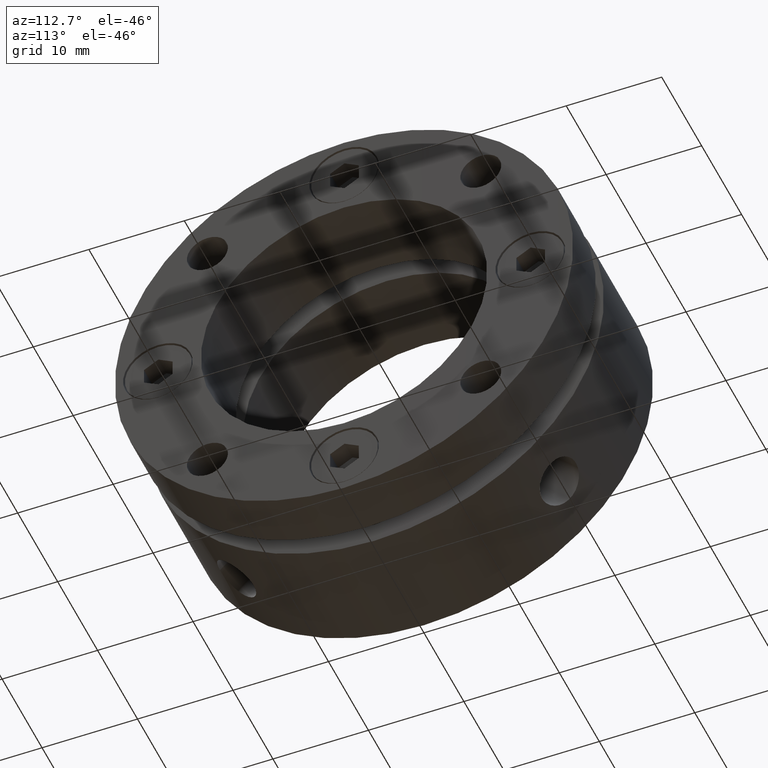
[diagram: clean part render]
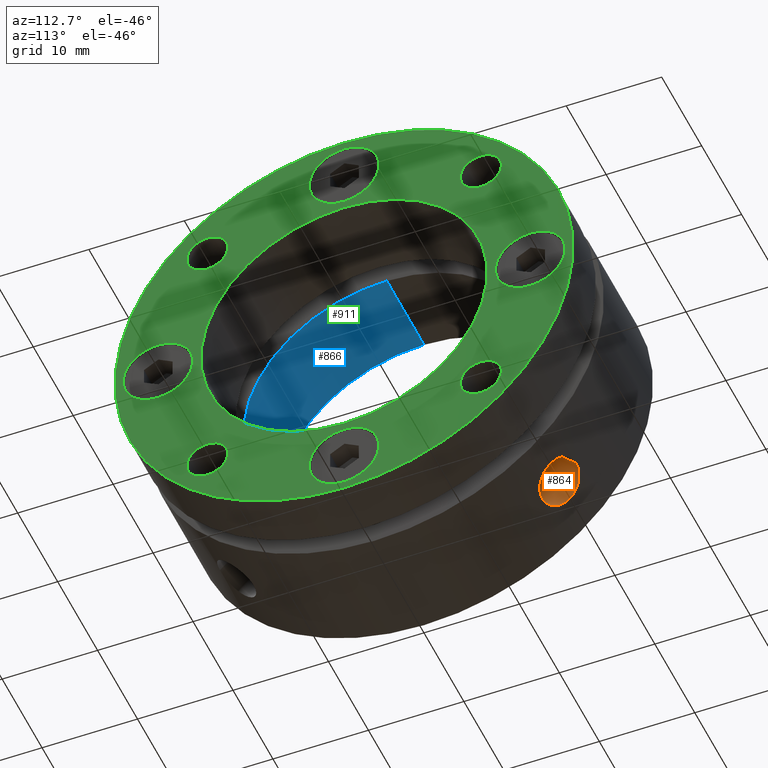
[diagram: same view with three faces highlighted in distinct colors, each labeled with its STEP entity id]
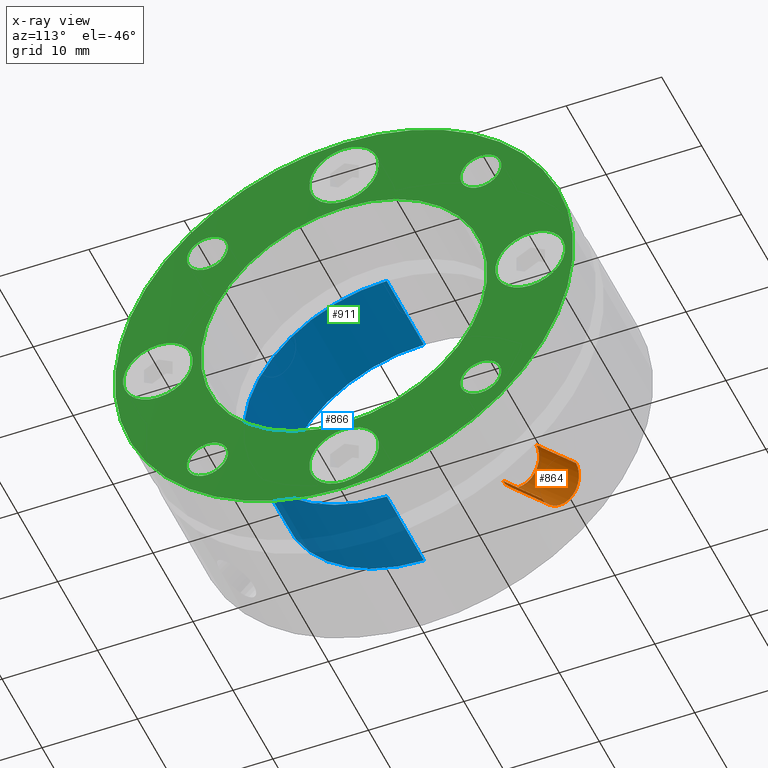
[diagram: x-ray of the same camera — body ghosted, the three highlighted faces saturated]
A machine part, auxiliary view with three faces highlighted in distinct colors.
The next image is the same camera in x-ray (body ghosted, the three faces saturated) — at least one of them is partly hidden behind the body in this view.
Their STEP definitions:

[orange] entity #864 — the highlighted cylindrical surface (edge-blend (fillet) strip) has radius 2.5 mm, axis along (0, 0.7071, -0.7071).
#273 = VERTEX_POINT ( 'NONE', #1110 ) ;
#342 = VERTEX_POINT ( 'NONE', #1218 ) ;
#357 = VERTEX_POINT ( 'NONE', #1233 ) ;
#366 = VERTEX_POINT ( 'NONE', #1242 ) ;
#637 = FACE_OUTER_BOUND ( 'NONE', #1670, .T. ) ;
#645 = CYLINDRICAL_SURFACE ( 'NONE', #1642, 2.500000000000000900 ) ;
#864 = ADVANCED_FACE ( 'NONE', ( #637 ), #645, .F. ) ;
#943 = ORIENTED_EDGE ( 'NONE', *, *, #2958, .F. ) ;
#986 = ORIENTED_EDGE ( 'NONE', *, *, #2942, .F. ) ;
#1063 = ORIENTED_EDGE ( 'NONE', *, *, #2944, .F. ) ;
#1077 = ORIENTED_EDGE ( 'NONE', *, *, #2943, .T. ) ;
#1110 = CARTESIAN_POINT ( 'NONE',  ( 6.499999999999992900, 18.64600738258462100, -15.11047347665188100 ) ) ;
#1218 = CARTESIAN_POINT ( 'NONE',  ( 6.499999999999992900, 15.11047347665188100, -18.64600738258462100 ) ) ;
#1233 = CARTESIAN_POINT ( 'NONE',  ( 6.499999999999992900, 14.49568901193031700, -10.96015511078540200 ) ) ;
#1242 = CARTESIAN_POINT ( 'NONE',  ( 6.499999999999992900, 10.96015511078539400, -14.49568901193032000 ) ) ;
#1418 = DIRECTION ( 'NONE',  ( 0.0000000000000000000, 0.7071067811865482400, 0.7071067811865469100 ) ) ;
#1420 = DIRECTION ( 'NONE',  ( 0.0000000000000000000, 0.7071067811865470200, -0.7071067811865480200 ) ) ;
#1422 = CARTESIAN_POINT ( 'NONE',  ( 6.499999999999992900, 14.84924240491750200, -14.84924240491750100 ) ) ;
#1642 = AXIS2_PLACEMENT_3D ( 'NONE', #1422, #1420, #1418 ) ;
#1670 = EDGE_LOOP ( 'NONE', ( #986, #1077, #943, #1063 ) ) ;
#1974 = DIRECTION ( 'NONE',  ( 0.0000000000000000000, 0.7071067811865470200, -0.7071067811865480200 ) ) ;
#1975 = CARTESIAN_POINT ( 'NONE',  ( 6.499999999999992900, 16.61700935788387300, -13.08147545195113400 ) ) ;
#1976 = CARTESIAN_POINT ( 'NONE',  ( 6.499999999999992900, 13.08147545195113400, -16.61700935788386600 ) ) ;
#1977 = CARTESIAN_POINT ( 'NONE',  ( 6.499999999999992900, 12.72792206135786100, -12.72792206135785500 ) ) ;
#1978 = DIRECTION ( 'NONE',  ( 0.0000000000000000000, 0.7071067811865470200, -0.7071067811865480200 ) ) ;
#1979 = DIRECTION ( 'NONE',  ( 0.0000000000000000000, 0.7071067811865477900, 0.7071067811865471300 ) ) ;
#1980 = DIRECTION ( 'NONE',  ( 0.0000000000000000000, 0.7071067811865470200, -0.7071067811865480200 ) ) ;
#2004 = CARTESIAN_POINT ( 'NONE',  ( 6.336851229127781900, 18.64600738258462400, -15.11047347665188000 ) ) ;
#2044 = CARTESIAN_POINT ( 'NONE',  ( 6.499999999999992900, 18.64600738258462100, -15.11047347665188100 ) ) ;
#2047 = CARTESIAN_POINT ( 'NONE',  ( 6.171126318216708200, 18.63567463870816700, -15.12324914815100000 ) ) ;
#2048 = CARTESIAN_POINT ( 'NONE',  ( 5.850495281030658700, 18.59508197673410700, -15.17313284445170400 ) ) ;
#2049 = CARTESIAN_POINT ( 'NONE',  ( 5.694643620607737800, 18.56504055036660000, -15.20997163798968700 ) ) ;
#2050 = CARTESIAN_POINT ( 'NONE',  ( 5.391912817331038900, 18.48494439098286400, -15.30721394400294600 ) ) ;
#2051 = CARTESIAN_POINT ( 'NONE',  ( 5.245723716158093600, 18.43476503243007200, -15.36774834010177500 ) ) ;
#2052 = CARTESIAN_POINT ( 'NONE',  ( 4.975052603350497400, 18.31791219003896000, -15.50684828853463200 ) ) ;
#2053 = CARTESIAN_POINT ( 'NONE',  ( 4.848831003259738800, 18.25082929444969800, -15.58592055930879100 ) ) ;
#2054 = CARTESIAN_POINT ( 'NONE',  ( 4.615481588381011400, 18.09799925712380300, -15.76312508690372700 ) ) ;
#2055 = CARTESIAN_POINT ( 'NONE',  ( 4.512181590778398600, 18.01475831166785800, -15.85833714840190100 ) ) ;
#2056 = CARTESIAN_POINT ( 'NONE',  ( 4.331233056814772600, 17.83447995763962300, -16.06081251931982100 ) ) ;
#2057 = CARTESIAN_POINT ( 'NONE',  ( 4.252956242175906200, 17.73627231745221500, -16.16934113722194900 ) ) ;
#2058 = CARTESIAN_POINT ( 'NONE',  ( 4.127572985538736600, 17.53074584584160800, -16.39194615105805800 ) ) ;
#2059 = CARTESIAN_POINT ( 'NONE',  ( 4.080298989813622200, 17.42394023411386800, -16.50551426219283600 ) ) ;
#2060 = CARTESIAN_POINT ( 'NONE',  ( 4.016347628802773100, 17.20191697649172700, -16.73677826450804700 ) ) ;
#2061 = CARTESIAN_POINT ( 'NONE',  ( 3.999881642988480500, 17.08614379081348400, -16.85499914177078300 ) ) ;
#2062 = CARTESIAN_POINT ( 'NONE',  ( 4.000119653650899400, 16.85243539851974500, -17.08867247179155400 ) ) ;
#2063 = CARTESIAN_POINT ( 'NONE',  ( 4.016458775783743100, 16.73634325594349500, -17.20233587364240100 ) ) ;
#2064 = CARTESIAN_POINT ( 'NONE',  ( 4.080242779394365200, 16.50575063501013800, -17.42371203461626200 ) ) ;
#2065 = CARTESIAN_POINT ( 'NONE',  ( 4.128472171680477300, 16.39001592350015800, -17.53254973814429000 ) ) ;
#2066 = CARTESIAN_POINT ( 'NONE',  ( 4.254175294214838300, 16.16751633235228200, -17.73793499639160500 ) ) ;
#2067 = CARTESIAN_POINT ( 'NONE',  ( 4.331055416282445900, 16.06098996857352600, -17.83432355439122200 ) ) ;
#2068 = CARTESIAN_POINT ( 'NONE',  ( 4.512639676122377700, 15.85784592372521300, -18.01519408923269700 ) ) ;
#2069 = CARTESIAN_POINT ( 'NONE',  ( 4.618228715833774700, 15.76090865211908100, -18.09991950117736100 ) ) ;
#2070 = CARTESIAN_POINT ( 'NONE',  ( 4.848827627745725600, 15.58605496080352300, -18.25070459594244100 ) ) ;
#2071 = CARTESIAN_POINT ( 'NONE',  ( 4.974663932832263500, 15.50698082356055200, -18.31780400588882400 ) ) ;
#2072 = CARTESIAN_POINT ( 'NONE',  ( 5.248004349991624000, 15.36664397756031900, -18.43568959185797200 ) ) ;
#2073 = CARTESIAN_POINT ( 'NONE',  ( 5.393356109963741000, 15.30672219856723100, -18.48535010690456600 ) ) ;
#2074 = CARTESIAN_POINT ( 'NONE',  ( 5.694165667820613000, 15.21015339021312400, -18.56489016625564400 ) ) ;
#2075 = CARTESIAN_POINT ( 'NONE',  ( 5.851852106563592700, 15.17279477268713000, -18.59535790799961000 ) ) ;
#2076 = CARTESIAN_POINT ( 'NONE',  ( 6.174582852707471800, 15.12284026676862000, -18.63600652517826400 ) ) ;
#2077 = CARTESIAN_POINT ( 'NONE',  ( 6.336850941300691700, 15.11047347665188100, -18.64600738258462100 ) ) ;
#2078 = CARTESIAN_POINT ( 'NONE',  ( 6.499999999999992900, 15.11047347665188100, -18.64600738258462100 ) ) ;
#2636 = LINE ( 'NONE', #1976, #2643 ) ;
#2639 = CIRCLE ( 'NONE', #3368, 2.500000000000000000 ) ;
#2641 = LINE ( 'NONE', #1975, #2645 ) ;
#2643 = VECTOR ( 'NONE', #1974, 1000.000000000000000 ) ;
#2645 = VECTOR ( 'NONE', #1980, 1000.000000000000000 ) ;
#2942 = EDGE_CURVE ( 'NONE', #366, #357, #2639, .T. ) ;
#2943 = EDGE_CURVE ( 'NONE', #366, #342, #2636, .T. ) ;
#2944 = EDGE_CURVE ( 'NONE', #357, #273, #2641, .T. ) ;
#2958 = EDGE_CURVE ( 'NONE', #273, #342, #3222, .T. ) ;
#3222 = B_SPLINE_CURVE_WITH_KNOTS ( 'NONE', 3,
 ( #2044, #2004, #2047, #2048, #2049, #2050, #2051, #2052, #2053, #2054, #2055, #2056, #2057, #2058, #2059, #2060, #2061, #2062, #2063, #2064, #2065, #2066, #2067, #2068, #2069, #2070, #2071, #2072, #2073, #2074, #2075, #2076, #2077, #2078 ),
 .UNSPECIFIED., .F., .F.,
 ( 4, 2, 2, 2, 2, 2, 2, 2, 2, 2, 2, 2, 2, 2, 2, 2, 4 ),
 ( 0.01173133681417122000, 0.01222006856008957100, 0.01270880030600792000, 0.01319753205192627000, 0.01368626379784462100, 0.01417499554376297100, 0.01466372728968132000, 0.01515245903559967100, 0.01564119078151802000, 0.01612992252743637000, 0.01661865427335472100, 0.01710738601927307100, 0.01759611776519141900, 0.01808484951110977300, 0.01857358125702812000, 0.01906231300294647000, 0.01955104474886482100 ),
 .UNSPECIFIED. ) ;
#3368 = AXIS2_PLACEMENT_3D ( 'NONE', #1977, #1978, #1979 ) ;

[blue] entity #866 — the highlighted cylindrical surface (partial cylindrical patch) has radius 15 mm, axis along (1, 0, 0).
#338 = VERTEX_POINT ( 'NONE', #1214 ) ;
#339 = VERTEX_POINT ( 'NONE', #1215 ) ;
#341 = VERTEX_POINT ( 'NONE', #1217 ) ;
#356 = VERTEX_POINT ( 'NONE', #1232 ) ;
#640 = FACE_OUTER_BOUND ( 'NONE', #1664, .T. ) ;
#649 = CYLINDRICAL_SURFACE ( 'NONE', #1640, 15.00000000000000000 ) ;
#866 = ADVANCED_FACE ( 'NONE', ( #640 ), #649, .F. ) ;
#954 = ORIENTED_EDGE ( 'NONE', *, *, #2949, .T. ) ;
#979 = ORIENTED_EDGE ( 'NONE', *, *, #2951, .F. ) ;
#1027 = ORIENTED_EDGE ( 'NONE', *, *, #2948, .F. ) ;
#1082 = ORIENTED_EDGE ( 'NONE', *, *, #2953, .F. ) ;
#1214 = CARTESIAN_POINT ( 'NONE',  ( 9.300000000000022000, 1.836970198721029600E-015, 15.00000000000000000 ) ) ;
#1215 = CARTESIAN_POINT ( 'NONE',  ( 9.300000000000022000, 0.0000000000000000000, -15.00000000000000000 ) ) ;
#1217 = CARTESIAN_POINT ( 'NONE',  ( -3.469446951953614200E-015, 1.836970198721029600E-015, 15.00000000000000000 ) ) ;
#1232 = CARTESIAN_POINT ( 'NONE',  ( -3.469446951953614200E-015, 0.0000000000000000000, -15.00000000000000000 ) ) ;
#1424 = DIRECTION ( 'NONE',  ( 0.0000000000000000000, 0.0000000000000000000, -1.000000000000000000 ) ) ;
#1426 = DIRECTION ( 'NONE',  ( 1.000000000000000000, 0.0000000000000000000, 0.0000000000000000000 ) ) ;
#1428 = CARTESIAN_POINT ( 'NONE',  ( 9.999999999999996400, 0.0000000000000000000, 0.0000000000000000000 ) ) ;
#1640 = AXIS2_PLACEMENT_3D ( 'NONE', #1428, #1426, #1424 ) ;
#1664 = EDGE_LOOP ( 'NONE', ( #1027, #954, #979, #1082 ) ) ;
#1988 = DIRECTION ( 'NONE',  ( 1.000000000000000000, 0.0000000000000000000, 0.0000000000000000000 ) ) ;
#1990 = CARTESIAN_POINT ( 'NONE',  ( 9.999999999999996400, 1.836970198721029600E-015, 15.00000000000000000 ) ) ;
#1991 = CARTESIAN_POINT ( 'NONE',  ( -3.469446951953614200E-015, 0.0000000000000000000, 0.0000000000000000000 ) ) ;
#1992 = DIRECTION ( 'NONE',  ( 1.000000000000000000, 0.0000000000000000000, 0.0000000000000000000 ) ) ;
#1993 = DIRECTION ( 'NONE',  ( 0.0000000000000000000, 0.0000000000000000000, -1.000000000000000000 ) ) ;
#1998 = CARTESIAN_POINT ( 'NONE',  ( 9.300000000000022000, 0.0000000000000000000, 0.0000000000000000000 ) ) ;
#1999 = DIRECTION ( 'NONE',  ( -1.000000000000000000, -0.0000000000000000000, -0.0000000000000000000 ) ) ;
#2000 = DIRECTION ( 'NONE',  ( 0.0000000000000000000, 0.0000000000000000000, -1.000000000000000000 ) ) ;
#2001 = CARTESIAN_POINT ( 'NONE',  ( 9.999999999999996400, 0.0000000000000000000, -15.00000000000000000 ) ) ;
#2002 = DIRECTION ( 'NONE',  ( 1.000000000000000000, 0.0000000000000000000, 0.0000000000000000000 ) ) ;
#2647 = CIRCLE ( 'NONE', #3370, 15.00000000000000000 ) ;
#2649 = LINE ( 'NONE', #1990, #2653 ) ;
#2653 = VECTOR ( 'NONE', #1988, 1000.000000000000000 ) ;
#2654 = CIRCLE ( 'NONE', #3371, 15.00000000000000000 ) ;
#2657 = LINE ( 'NONE', #2001, #2660 ) ;
#2660 = VECTOR ( 'NONE', #2002, 1000.000000000000000 ) ;
#2948 = EDGE_CURVE ( 'NONE', #341, #356, #2647, .T. ) ;
#2949 = EDGE_CURVE ( 'NONE', #341, #338, #2649, .T. ) ;
#2951 = EDGE_CURVE ( 'NONE', #339, #338, #2654, .T. ) ;
#2953 = EDGE_CURVE ( 'NONE', #356, #339, #2657, .T. ) ;
#3370 = AXIS2_PLACEMENT_3D ( 'NONE', #1991, #1992, #1993 ) ;
#3371 = AXIS2_PLACEMENT_3D ( 'NONE', #1998, #1999, #2000 ) ;

[green] entity #911 — the highlighted planar face has unit normal (1, 0, 0).
#23 = EDGE_LOOP ( 'NONE', ( #436, #435 ) ) ;
#33 = EDGE_LOOP ( 'NONE', ( #444, #443 ) ) ;
#254 = AXIS2_PLACEMENT_3D ( 'NONE', #1563, #1559, #1565 ) ;
#427 = ORIENTED_EDGE ( 'NONE', *, *, #799, .F. ) ;
#428 = ORIENTED_EDGE ( 'NONE', *, *, #2857, .F. ) ;
#429 = ORIENTED_EDGE ( 'NONE', *, *, #2844, .T. ) ;
#430 = ORIENTED_EDGE ( 'NONE', *, *, #2830, .T. ) ;
#431 = ORIENTED_EDGE ( 'NONE', *, *, #2845, .T. ) ;
#432 = ORIENTED_EDGE ( 'NONE', *, *, #843, .T. ) ;
#433 = ORIENTED_EDGE ( 'NONE', *, *, #2846, .T. ) ;
#434 = ORIENTED_EDGE ( 'NONE', *, *, #845, .T. ) ;
#435 = ORIENTED_EDGE ( 'NONE', *, *, #2847, .T. ) ;
#436 = ORIENTED_EDGE ( 'NONE', *, *, #837, .T. ) ;
#437 = ORIENTED_EDGE ( 'NONE', *, *, #2849, .T. ) ;
#438 = ORIENTED_EDGE ( 'NONE', *, *, #832, .T. ) ;
#439 = ORIENTED_EDGE ( 'NONE', *, *, #2851, .T. ) ;
#440 = ORIENTED_EDGE ( 'NONE', *, *, #801, .T. ) ;
#441 = ORIENTED_EDGE ( 'NONE', *, *, #2853, .T. ) ;
#442 = ORIENTED_EDGE ( 'NONE', *, *, #804, .T. ) ;
#443 = ORIENTED_EDGE ( 'NONE', *, *, #2855, .T. ) ;
#444 = ORIENTED_EDGE ( 'NONE', *, *, #811, .T. ) ;
#445 = ORIENTED_EDGE ( 'NONE', *, *, #2856, .T. ) ;
#446 = ORIENTED_EDGE ( 'NONE', *, *, #3493, .T. ) ;
#476 = AXIS2_PLACEMENT_3D ( 'NONE', #1336, #1337, #1338 ) ;
#477 = AXIS2_PLACEMENT_3D ( 'NONE', #1258, #1259, #1260 ) ;
#481 = AXIS2_PLACEMENT_3D ( 'NONE', #1252, #1253, #1254 ) ;
#484 = AXIS2_PLACEMENT_3D ( 'NONE', #1264, #1265, #1266 ) ;
#490 = AXIS2_PLACEMENT_3D ( 'NONE', #1282, #1283, #1284 ) ;
#498 = AXIS2_PLACEMENT_3D ( 'NONE', #1350, #1351, #1352 ) ;
#501 = AXIS2_PLACEMENT_3D ( 'NONE', #1368, #1369, #1370 ) ;
#502 = AXIS2_PLACEMENT_3D ( 'NONE', #1360, #1361, #1362 ) ;
#542 = CIRCLE ( 'NONE', #481, 24.00000000000000400 ) ;
#551 = CIRCLE ( 'NONE', #477, 3.650000000000000400 ) ;
#553 = CIRCLE ( 'NONE', #484, 3.649999999999999900 ) ;
#563 = CIRCLE ( 'NONE', #490, 3.650000000000000400 ) ;
#595 = CIRCLE ( 'NONE', #476, 3.649999999999999900 ) ;
#603 = CIRCLE ( 'NONE', #498, 2.149999999999999000 ) ;
#612 = CIRCLE ( 'NONE', #502, 2.149999999999999000 ) ;
#616 = CIRCLE ( 'NONE', #501, 2.149999999999999000 ) ;
#730 = FACE_BOUND ( 'NONE', #1662, .T. ) ;
#732 = FACE_BOUND ( 'NONE', #3529, .T. ) ;
#734 = FACE_BOUND ( 'NONE', #3530, .T. ) ;
#736 = FACE_BOUND ( 'NONE', #3528, .T. ) ;
#738 = FACE_BOUND ( 'NONE', #33, .T. ) ;
#739 = FACE_BOUND ( 'NONE', #23, .T. ) ;
#740 = FACE_BOUND ( 'NONE', #3531, .T. ) ;
#741 = FACE_BOUND ( 'NONE', #3532, .T. ) ;
#742 = FACE_BOUND ( 'NONE', #3533, .T. ) ;
#743 = FACE_OUTER_BOUND ( 'NONE', #3534, .T. ) ;
#799 = EDGE_CURVE ( 'NONE', #1003, #1067, #542, .T. ) ;
#801 = EDGE_CURVE ( 'NONE', #1014, #1039, #551, .T. ) ;
#804 = EDGE_CURVE ( 'NONE', #1083, #960, #553, .T. ) ;
#811 = EDGE_CURVE ( 'NONE', #1056, #1058, #563, .T. ) ;
#832 = EDGE_CURVE ( 'NONE', #1064, #1020, #595, .T. ) ;
#837 = EDGE_CURVE ( 'NONE', #953, #955, #603, .T. ) ;
#843 = EDGE_CURVE ( 'NONE', #1012, #999, #612, .T. ) ;
#845 = EDGE_CURVE ( 'NONE', #1035, #1037, #616, .T. ) ;
#911 = ADVANCED_FACE ( 'NONE', ( #730, #738, #734, #732, #736, #739, #740, #741, #742, #743 ), #1561, .T. ) ;
#953 = VERTEX_POINT ( 'NONE', #1690 ) ;
#955 = VERTEX_POINT ( 'NONE', #1685 ) ;
#960 = VERTEX_POINT ( 'NONE', #1694 ) ;
#999 = VERTEX_POINT ( 'NONE', #1709 ) ;
#1003 = VERTEX_POINT ( 'NONE', #1711 ) ;
#1012 = VERTEX_POINT ( 'NONE', #1706 ) ;
#1014 = VERTEX_POINT ( 'NONE', #1715 ) ;
#1020 = VERTEX_POINT ( 'NONE', #1718 ) ;
#1035 = VERTEX_POINT ( 'NONE', #1713 ) ;
#1036 = VERTEX_POINT ( 'NONE', #1720 ) ;
#1037 = VERTEX_POINT ( 'NONE', #1721 ) ;
#1039 = VERTEX_POINT ( 'NONE', #1719 ) ;
#1050 = VERTEX_POINT ( 'NONE', #1725 ) ;
#1053 = VERTEX_POINT ( 'NONE', #1729 ) ;
#1056 = VERTEX_POINT ( 'NONE', #1728 ) ;
#1058 = VERTEX_POINT ( 'NONE', #1724 ) ;
#1064 = VERTEX_POINT ( 'NONE', #1733 ) ;
#1067 = VERTEX_POINT ( 'NONE', #1730 ) ;
#1083 = VERTEX_POINT ( 'NONE', #1737 ) ;
#1084 = VERTEX_POINT ( 'NONE', #1735 ) ;
#1252 = CARTESIAN_POINT ( 'NONE',  ( 19.99999999999999300, 0.0000000000000000000, 0.0000000000000000000 ) ) ;
#1253 = DIRECTION ( 'NONE',  ( -1.000000000000000000, -0.0000000000000000000, -0.0000000000000000000 ) ) ;
#1254 = DIRECTION ( 'NONE',  ( 0.0000000000000000000, 0.0000000000000000000, -1.000000000000000000 ) ) ;
#1258 = CARTESIAN_POINT ( 'NONE',  ( 19.99999999999999600, -2.388060999999999800E-015, -19.50000000000001400 ) ) ;
#1259 = DIRECTION ( 'NONE',  ( -1.000000000000000000, -0.0000000000000000000, -0.0000000000000000000 ) ) ;
#1260 = DIRECTION ( 'NONE',  ( 0.0000000000000000000, 0.0000000000000000000, -1.000000000000000000 ) ) ;
#1264 = CARTESIAN_POINT ( 'NONE',  ( 19.99999999999999600, -19.50000000000001400, 1.194031000000000000E-015 ) ) ;
#1265 = DIRECTION ( 'NONE',  ( -1.000000000000000000, -0.0000000000000000000, -0.0000000000000000000 ) ) ;
#1266 = DIRECTION ( 'NONE',  ( 0.0000000000000000000, 0.0000000000000000000, -1.000000000000000000 ) ) ;
#1282 = CARTESIAN_POINT ( 'NONE',  ( 19.99999999999999600, 0.0000000000000000000, 19.50000000000001400 ) ) ;
#1283 = DIRECTION ( 'NONE',  ( -1.000000000000000000, -0.0000000000000000000, -0.0000000000000000000 ) ) ;
#1284 = DIRECTION ( 'NONE',  ( 0.0000000000000000000, 0.0000000000000000000, -1.000000000000000000 ) ) ;
#1336 = CARTESIAN_POINT ( 'NONE',  ( 19.99999999999999600, 19.50000000000001400, -3.582092000000000200E-015 ) ) ;
#1337 = DIRECTION ( 'NONE',  ( -1.000000000000000000, -0.0000000000000000000, -0.0000000000000000000 ) ) ;
#1338 = DIRECTION ( 'NONE',  ( 0.0000000000000000000, 0.0000000000000000000, -1.000000000000000000 ) ) ;
#1350 = CARTESIAN_POINT ( 'NONE',  ( 19.99999999999999600, -14.31891231902758900, 14.31891231902758900 ) ) ;
#1351 = DIRECTION ( 'NONE',  ( -1.000000000000000000, -0.0000000000000000000, -0.0000000000000000000 ) ) ;
#1352 = DIRECTION ( 'NONE',  ( 0.0000000000000000000, 0.0000000000000000000, -1.000000000000000000 ) ) ;
#1360 = CARTESIAN_POINT ( 'NONE',  ( 19.99999999999999600, 14.31891231902758900, -14.31891231902758900 ) ) ;
#1361 = DIRECTION ( 'NONE',  ( -1.000000000000000000, -0.0000000000000000000, -0.0000000000000000000 ) ) ;
#1362 = DIRECTION ( 'NONE',  ( 0.0000000000000000000, 0.0000000000000000000, -1.000000000000000000 ) ) ;
#1368 = CARTESIAN_POINT ( 'NONE',  ( 19.99999999999999600, -14.31891231902758900, -14.31891231902758900 ) ) ;
#1369 = DIRECTION ( 'NONE',  ( -1.000000000000000000, -0.0000000000000000000, -0.0000000000000000000 ) ) ;
#1370 = DIRECTION ( 'NONE',  ( 0.0000000000000000000, 0.0000000000000000000, -1.000000000000000000 ) ) ;
#1559 = DIRECTION ( 'NONE',  ( 1.000000000000000000, -0.0000000000000000000, 0.0000000000000000000 ) ) ;
#1561 = PLANE ( 'NONE',  #254 ) ;
#1563 = CARTESIAN_POINT ( 'NONE',  ( 19.99999999999999600, 19.50000000000000000, 0.0000000000000000000 ) ) ;
#1565 = DIRECTION ( 'NONE',  ( 0.0000000000000000000, 0.0000000000000000000, -1.000000000000000000 ) ) ;
#1662 = EDGE_LOOP ( 'NONE', ( #446, #445 ) ) ;
#1685 = CARTESIAN_POINT ( 'NONE',  ( 19.99999999999999600, -14.31891231902758900, 16.46891231902758800 ) ) ;
#1690 = CARTESIAN_POINT ( 'NONE',  ( 19.99999999999999600, -14.31891231902758900, 12.16891231902758900 ) ) ;
#1694 = CARTESIAN_POINT ( 'NONE',  ( 19.99999999999999600, -19.50000000000001400, 3.650000000000001200 ) ) ;
#1706 = CARTESIAN_POINT ( 'NONE',  ( 19.99999999999999600, 14.31891231902758900, -16.46891231902758800 ) ) ;
#1709 = CARTESIAN_POINT ( 'NONE',  ( 19.99999999999999600, 14.31891231902758900, -12.16891231902758900 ) ) ;
#1711 = CARTESIAN_POINT ( 'NONE',  ( 19.99999999999999300, 2.939152317953648300E-015, 24.00000000000000400 ) ) ;
#1713 = CARTESIAN_POINT ( 'NONE',  ( 19.99999999999999600, -14.31891231902758900, -16.46891231902758800 ) ) ;
#1715 = CARTESIAN_POINT ( 'NONE',  ( 19.99999999999999600, -2.388060999999999800E-015, -23.15000000000001300 ) ) ;
#1718 = CARTESIAN_POINT ( 'NONE',  ( 19.99999999999999600, 19.50000000000001400, 3.649999999999996400 ) ) ;
#1719 = CARTESIAN_POINT ( 'NONE',  ( 19.99999999999999600, -1.941064918311216000E-015, -15.85000000000001400 ) ) ;
#1720 = CARTESIAN_POINT ( 'NONE',  ( 19.99999999999999600, 0.0000000000000000000, -15.00000000000000000 ) ) ;
#1721 = CARTESIAN_POINT ( 'NONE',  ( 19.99999999999999600, -14.31891231902758900, -12.16891231902758900 ) ) ;
#1724 = CARTESIAN_POINT ( 'NONE',  ( 19.99999999999999600, 4.469960816887838400E-016, 23.15000000000001300 ) ) ;
#1725 = CARTESIAN_POINT ( 'NONE',  ( 19.99999999999999600, 14.31891231902759100, 12.16891231902758500 ) ) ;
#1728 = CARTESIAN_POINT ( 'NONE',  ( 19.99999999999999600, 0.0000000000000000000, 15.85000000000001400 ) ) ;
#1729 = CARTESIAN_POINT ( 'NONE',  ( 19.99999999999999600, 14.31891231902759100, 16.46891231902758400 ) ) ;
#1730 = CARTESIAN_POINT ( 'NONE',  ( 19.99999999999999300, 0.0000000000000000000, -24.00000000000000400 ) ) ;
#1733 = CARTESIAN_POINT ( 'NONE',  ( 19.99999999999999600, 19.50000000000001400, -3.650000000000003500 ) ) ;
#1735 = CARTESIAN_POINT ( 'NONE',  ( 19.99999999999999600, 1.836970198721029600E-015, 15.00000000000000000 ) ) ;
#1737 = CARTESIAN_POINT ( 'NONE',  ( 19.99999999999999600, -19.50000000000001400, -3.649999999999998600 ) ) ;
#1745 = CARTESIAN_POINT ( 'NONE',  ( 19.99999999999999600, 14.31891231902759100, 14.31891231902758600 ) ) ;
#1746 = DIRECTION ( 'NONE',  ( -1.000000000000000000, -0.0000000000000000000, -0.0000000000000000000 ) ) ;
#1747 = DIRECTION ( 'NONE',  ( 0.0000000000000000000, 0.0000000000000000000, -1.000000000000000000 ) ) ;
#1779 = CARTESIAN_POINT ( 'NONE',  ( 19.99999999999999600, 14.31891231902759100, 14.31891231902758600 ) ) ;
#1780 = DIRECTION ( 'NONE',  ( -1.000000000000000000, -0.0000000000000000000, -0.0000000000000000000 ) ) ;
#1781 = DIRECTION ( 'NONE',  ( 0.0000000000000000000, 0.0000000000000000000, -1.000000000000000000 ) ) ;
#1782 = CARTESIAN_POINT ( 'NONE',  ( 19.99999999999999600, 14.31891231902758900, -14.31891231902758900 ) ) ;
#1783 = DIRECTION ( 'NONE',  ( -1.000000000000000000, -0.0000000000000000000, -0.0000000000000000000 ) ) ;
#1784 = DIRECTION ( 'NONE',  ( 0.0000000000000000000, 0.0000000000000000000, -1.000000000000000000 ) ) ;
#1785 = CARTESIAN_POINT ( 'NONE',  ( 19.99999999999999600, -14.31891231902758900, -14.31891231902758900 ) ) ;
#1786 = DIRECTION ( 'NONE',  ( -1.000000000000000000, -0.0000000000000000000, -0.0000000000000000000 ) ) ;
#1787 = DIRECTION ( 'NONE',  ( 0.0000000000000000000, 0.0000000000000000000, -1.000000000000000000 ) ) ;
#1788 = CARTESIAN_POINT ( 'NONE',  ( 19.99999999999999600, -14.31891231902758900, 14.31891231902758900 ) ) ;
#1789 = DIRECTION ( 'NONE',  ( -1.000000000000000000, -0.0000000000000000000, -0.0000000000000000000 ) ) ;
#1790 = DIRECTION ( 'NONE',  ( 0.0000000000000000000, 0.0000000000000000000, -1.000000000000000000 ) ) ;
#1794 = CARTESIAN_POINT ( 'NONE',  ( 19.99999999999999600, 19.50000000000001400, -3.582092000000000200E-015 ) ) ;
#1795 = DIRECTION ( 'NONE',  ( -1.000000000000000000, -0.0000000000000000000, -0.0000000000000000000 ) ) ;
#1796 = DIRECTION ( 'NONE',  ( 0.0000000000000000000, 0.0000000000000000000, -1.000000000000000000 ) ) ;
#1800 = CARTESIAN_POINT ( 'NONE',  ( 19.99999999999999600, -2.388060999999999800E-015, -19.50000000000001400 ) ) ;
#1801 = DIRECTION ( 'NONE',  ( -1.000000000000000000, -0.0000000000000000000, -0.0000000000000000000 ) ) ;
#1802 = DIRECTION ( 'NONE',  ( 0.0000000000000000000, 0.0000000000000000000, -1.000000000000000000 ) ) ;
#1806 = CARTESIAN_POINT ( 'NONE',  ( 19.99999999999999600, -19.50000000000001400, 1.194031000000000000E-015 ) ) ;
#1807 = DIRECTION ( 'NONE',  ( -1.000000000000000000, -0.0000000000000000000, -0.0000000000000000000 ) ) ;
#1808 = DIRECTION ( 'NONE',  ( 0.0000000000000000000, 0.0000000000000000000, -1.000000000000000000 ) ) ;
#1812 = CARTESIAN_POINT ( 'NONE',  ( 19.99999999999999600, 0.0000000000000000000, 19.50000000000001400 ) ) ;
#1813 = DIRECTION ( 'NONE',  ( -1.000000000000000000, -0.0000000000000000000, -0.0000000000000000000 ) ) ;
#1814 = DIRECTION ( 'NONE',  ( 0.0000000000000000000, 0.0000000000000000000, -1.000000000000000000 ) ) ;
#1815 = CARTESIAN_POINT ( 'NONE',  ( 19.99999999999999600, 0.0000000000000000000, 0.0000000000000000000 ) ) ;
#1816 = DIRECTION ( 'NONE',  ( -1.000000000000000000, -0.0000000000000000000, -0.0000000000000000000 ) ) ;
#1817 = DIRECTION ( 'NONE',  ( 0.0000000000000000000, 0.0000000000000000000, -1.000000000000000000 ) ) ;
#1818 = CARTESIAN_POINT ( 'NONE',  ( 19.99999999999999300, 0.0000000000000000000, 0.0000000000000000000 ) ) ;
#1819 = DIRECTION ( 'NONE',  ( -1.000000000000000000, -0.0000000000000000000, -0.0000000000000000000 ) ) ;
#1820 = DIRECTION ( 'NONE',  ( 0.0000000000000000000, 0.0000000000000000000, -1.000000000000000000 ) ) ;
#2300 = CARTESIAN_POINT ( 'NONE',  ( 19.99999999999999600, 0.0000000000000000000, 0.0000000000000000000 ) ) ;
#2301 = DIRECTION ( 'NONE',  ( -1.000000000000000000, -0.0000000000000000000, -0.0000000000000000000 ) ) ;
#2302 = DIRECTION ( 'NONE',  ( 0.0000000000000000000, 0.0000000000000000000, -1.000000000000000000 ) ) ;
#2576 = CIRCLE ( 'NONE', #3472, 2.149999999999999000 ) ;
#2590 = CIRCLE ( 'NONE', #3356, 24.00000000000000400 ) ;
#2597 = CIRCLE ( 'NONE', #3477, 2.149999999999999000 ) ;
#2598 = CIRCLE ( 'NONE', #3344, 2.149999999999999000 ) ;
#2599 = CIRCLE ( 'NONE', #3345, 2.149999999999999000 ) ;
#2600 = CIRCLE ( 'NONE', #3346, 2.149999999999999000 ) ;
#2602 = CIRCLE ( 'NONE', #3348, 3.649999999999999900 ) ;
#2604 = CIRCLE ( 'NONE', #3350, 3.650000000000000400 ) ;
#2606 = CIRCLE ( 'NONE', #3352, 3.649999999999999900 ) ;
#2608 = CIRCLE ( 'NONE', #3354, 3.650000000000000400 ) ;
#2609 = CIRCLE ( 'NONE', #3355, 15.00000000000000000 ) ;
#2764 = CIRCLE ( 'NONE', #2875, 15.00000000000000000 ) ;
#2830 = EDGE_CURVE ( 'NONE', #1050, #1053, #2576, .T. ) ;
#2844 = EDGE_CURVE ( 'NONE', #1053, #1050, #2597, .T. ) ;
#2845 = EDGE_CURVE ( 'NONE', #999, #1012, #2598, .T. ) ;
#2846 = EDGE_CURVE ( 'NONE', #1037, #1035, #2599, .T. ) ;
#2847 = EDGE_CURVE ( 'NONE', #955, #953, #2600, .T. ) ;
#2849 = EDGE_CURVE ( 'NONE', #1020, #1064, #2602, .T. ) ;
#2851 = EDGE_CURVE ( 'NONE', #1039, #1014, #2604, .T. ) ;
#2853 = EDGE_CURVE ( 'NONE', #960, #1083, #2606, .T. ) ;
#2855 = EDGE_CURVE ( 'NONE', #1058, #1056, #2608, .T. ) ;
#2856 = EDGE_CURVE ( 'NONE', #1084, #1036, #2609, .T. ) ;
#2857 = EDGE_CURVE ( 'NONE', #1067, #1003, #2590, .T. ) ;
#2875 = AXIS2_PLACEMENT_3D ( 'NONE', #2300, #2301, #2302 ) ;
#3344 = AXIS2_PLACEMENT_3D ( 'NONE', #1782, #1783, #1784 ) ;
#3345 = AXIS2_PLACEMENT_3D ( 'NONE', #1785, #1786, #1787 ) ;
#3346 = AXIS2_PLACEMENT_3D ( 'NONE', #1788, #1789, #1790 ) ;
#3348 = AXIS2_PLACEMENT_3D ( 'NONE', #1794, #1795, #1796 ) ;
#3350 = AXIS2_PLACEMENT_3D ( 'NONE', #1800, #1801, #1802 ) ;
#3352 = AXIS2_PLACEMENT_3D ( 'NONE', #1806, #1807, #1808 ) ;
#3354 = AXIS2_PLACEMENT_3D ( 'NONE', #1812, #1813, #1814 ) ;
#3355 = AXIS2_PLACEMENT_3D ( 'NONE', #1815, #1816, #1817 ) ;
#3356 = AXIS2_PLACEMENT_3D ( 'NONE', #1818, #1819, #1820 ) ;
#3472 = AXIS2_PLACEMENT_3D ( 'NONE', #1745, #1746, #1747 ) ;
#3477 = AXIS2_PLACEMENT_3D ( 'NONE', #1779, #1780, #1781 ) ;
#3493 = EDGE_CURVE ( 'NONE', #1036, #1084, #2764, .T. ) ;
#3528 = EDGE_LOOP ( 'NONE', ( #438, #437 ) ) ;
#3529 = EDGE_LOOP ( 'NONE', ( #440, #439 ) ) ;
#3530 = EDGE_LOOP ( 'NONE', ( #442, #441 ) ) ;
#3531 = EDGE_LOOP ( 'NONE', ( #434, #433 ) ) ;
#3532 = EDGE_LOOP ( 'NONE', ( #432, #431 ) ) ;
#3533 = EDGE_LOOP ( 'NONE', ( #430, #429 ) ) ;
#3534 = EDGE_LOOP ( 'NONE', ( #428, #427 ) ) ;